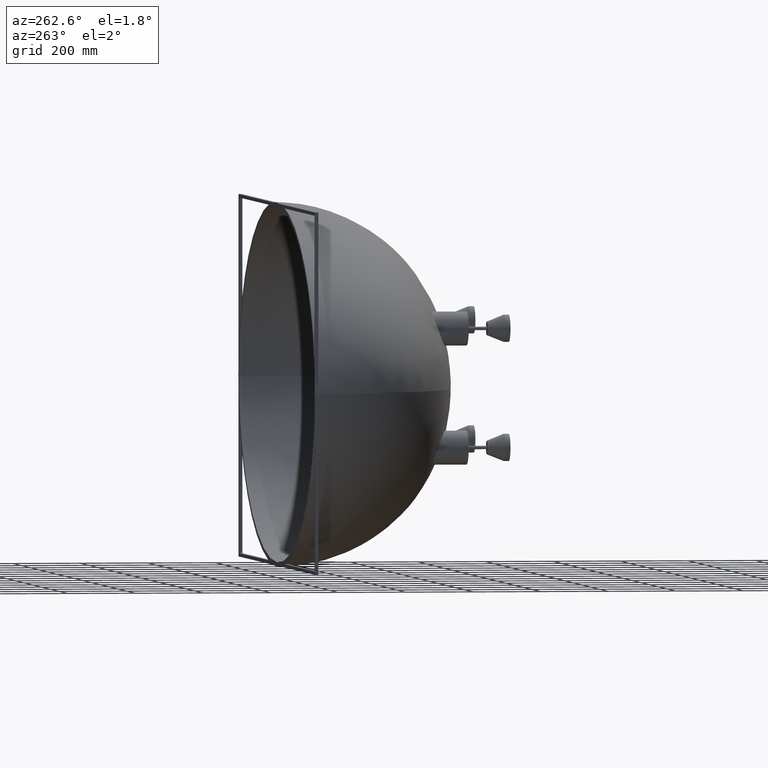
[diagram: clean part render]
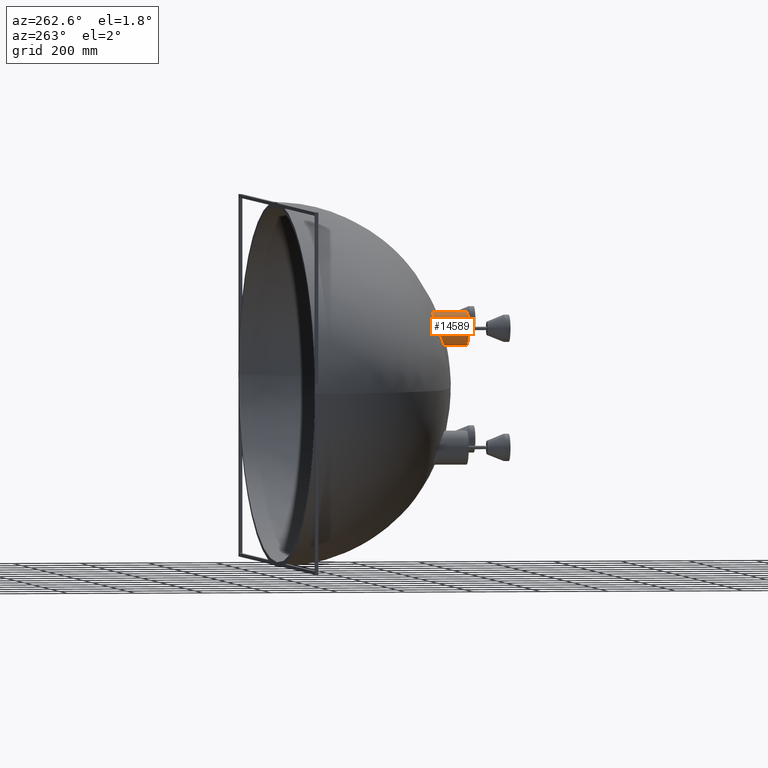
[diagram: same view with one face highlighted and labeled with its STEP entity id]
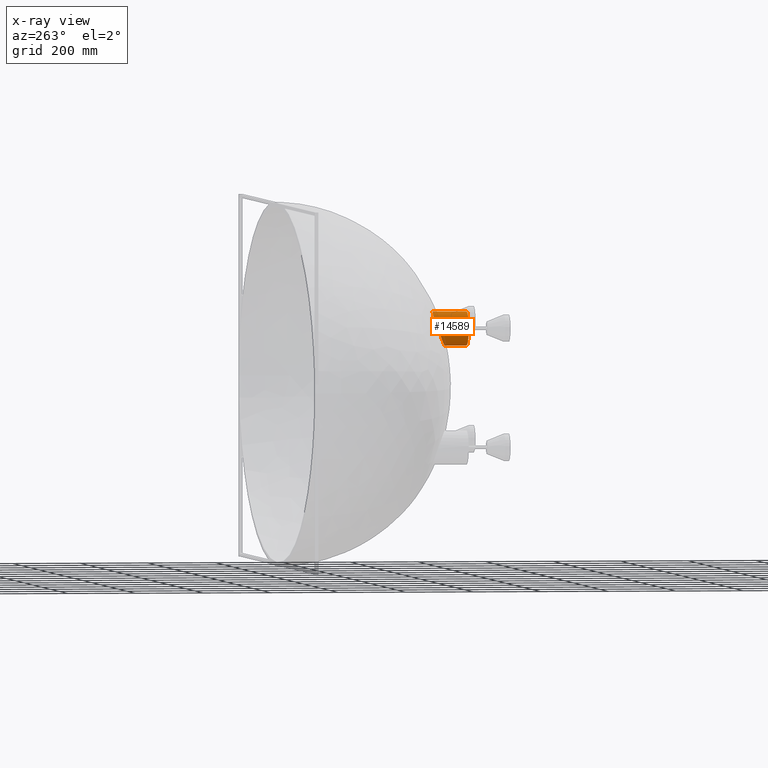
[diagram: x-ray of the same camera — body ghosted, the highlighted face saturated]
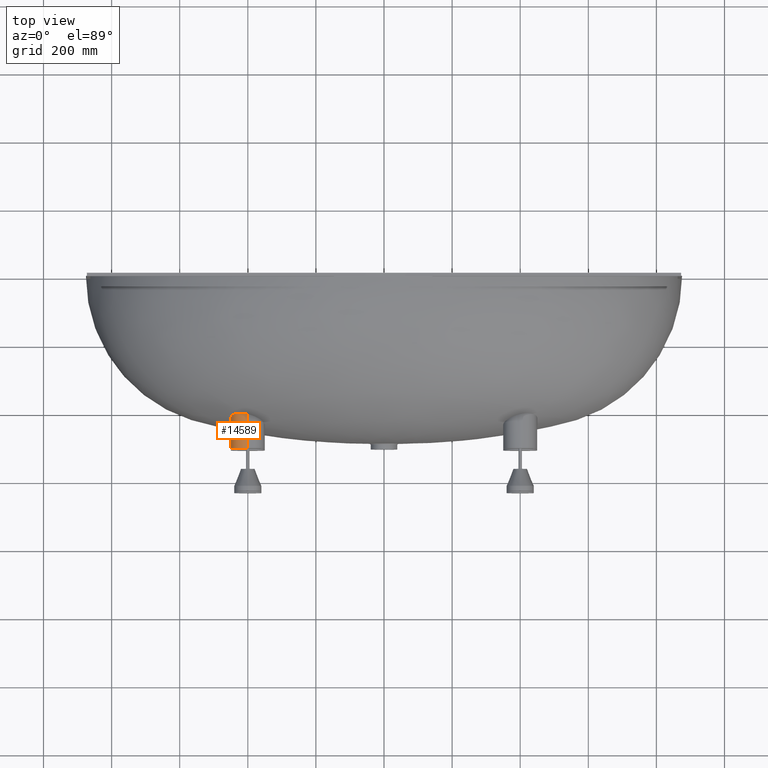
[diagram: same view with one face highlighted and labeled with its STEP entity id]
A machine part, auxiliary view. The second image highlights one B-rep face of the part: STEP entity #14589.
The next image is the same camera in x-ray: the body ghosted, the highlighted face saturated — about 0% of this face is hidden behind the body in this view.
A second angle (top view) of the same face is appended — the face is thin or edge-on in the first view.
In plain terms, the highlighted cylindrical surface (edge-blend (fillet) strip) has radius 50 mm, axis along (-0, -1, -0).
Its self-contained STEP definition (entity closure, byte-faithful):
#220 = CARTESIAN_POINT ( 'NONE',  ( -449.9116648370085200, -421.0381201785781400, 170.6494432975589200 ) ) ;
#264 = CARTESIAN_POINT ( 'NONE',  ( -414.0450456471586400, -407.6714688000552700, 222.9943056603304700 ) ) ;
#305 = CARTESIAN_POINT ( 'NONE',  ( -421.1647132385157300, -407.2619808071808100, 220.3311238034123400 ) ) ;
#373 = CARTESIAN_POINT ( 'NONE',  ( -422.6882404841763300, -407.2511992245716800, 219.5886551480459200 ) ) ;
#545 = CARTESIAN_POINT ( 'NONE',  ( -449.7327639298046600, -417.5366901305426900, 180.2251875773610800 ) ) ;
#620 = CARTESIAN_POINT ( 'NONE',  ( -400.0000000000000000, -445.3990864814148800, 124.9999999999999000 ) ) ;
#885 = CARTESIAN_POINT ( 'NONE',  ( -431.3235329533912900, -407.7369028091264900, 214.1202192636429800 ) ) ;
#1150 = CARTESIAN_POINT ( 'NONE',  ( -399.9999999999999400, -510.0000000000000000, 225.0000000000000600 ) ) ;
#1883 = CARTESIAN_POINT ( 'NONE',  ( -438.9835947540050300, -409.4006746826319200, 206.3205541717884700 ) ) ;
#2279 = EDGE_CURVE ( 'NONE', #14464, #12348, #14234, .T. ) ;
#2462 = CARTESIAN_POINT ( 'NONE',  ( -399.9999999999999400, 500000.0000000000600, 225.0000000000000600 ) ) ;
#2890 = CARTESIAN_POINT ( 'NONE',  ( -416.4701076750823200, -407.4636669845223200, 222.2398379057674700 ) ) ;
#3048 = CARTESIAN_POINT ( 'NONE',  ( -416.3164395272490900, -441.4707758312712300, 127.7086192455929000 ) ) ;
#3182 = CARTESIAN_POINT ( 'NONE',  ( -430.5275802337261000, -436.4741714355846500, 135.3929108751777900 ) ) ;
#3218 = CARTESIAN_POINT ( 'NONE',  ( -425.1878717946022400, -438.6091470739149300, 131.6852636224371100 ) ) ;
#3246 = B_SPLINE_CURVE_WITH_KNOTS ( 'NONE', 3,
 ( #17185, #6456, #19880, #5340, #17418, #5898, #264, #2890, #17348, #305, #373, #18927, #16192, #8152, #9160, #885, #21544, #6183, #20570, #8176, #1883, #8002, #11040, #19466, #10685, #20540, #14777, #4703, #11142, #6255, #20807, #16519, #15546, #545, #21086, #8368, #9654, #220, #6299, #10287, #3853, #20909, #11191, #15947, #19028, #16019, #8494, #11121, #11606, #17132, #6157, #6939, #9783, #5036, #10590, #7010, #3182, #11279, #4424, #3218, #14078, #11952, #3048, #6841, #15425, #4822, #18004, #19955, #5225, #19117, #20708, #20074 ),
 .UNSPECIFIED., .F., .F.,
 ( 4, 2, 2, 2, 2, 2, 2, 2, 2, 2, 2, 2, 2, 2, 2, 2, 2, 2, 2, 2, 2, 2, 2, 2, 2, 2, 2, 2, 2, 2, 2, 2, 2, 2, 2, 4 ),
 ( 0.1633217522038277500, 0.1734700106532636700, 0.1760070752656227900, 0.1785441398779819300, 0.1836182691027001300, 0.1886923983274183000, 0.1912294629397774400, 0.1937665275521365500, 0.2039147860015732600, 0.2064518506139323100, 0.2089889152262913700, 0.2140630444510094000, 0.2191371736757274400, 0.2216742382880865200, 0.2242113029004455800, 0.2343595613498817800, 0.2368966259622408700, 0.2394336905745999600, 0.2445078197993180700, 0.2546560782487543600, 0.2571931428611133900, 0.2597302074734724200, 0.2648043366981903700, 0.2749525951476262700, 0.2774896597599851900, 0.2800267243723441600, 0.2851008535970622200, 0.2901749828217802300, 0.2927120474341392600, 0.2952491120464981700, 0.3053973704959337400, 0.3104714997206515800, 0.3130085643330104400, 0.3155456289453693100, 0.3206197581700869200, 0.3256938873948046500 ),
 .UNSPECIFIED. ) ;
#3325 = VECTOR ( 'NONE', #17889, 1000.000000000000000 ) ;
#3330 = EDGE_CURVE ( 'NONE', #8118, #14464, #3246, .T. ) ;
#3518 = CARTESIAN_POINT ( 'NONE',  ( -399.9999999999999400, -510.0000000000000000, 124.9999999999999100 ) ) ;
#3573 = CARTESIAN_POINT ( 'NONE',  ( -399.9999999999999400, 500000.0000000000600, 124.9999999999999100 ) ) ;
#3853 = CARTESIAN_POINT ( 'NONE',  ( -448.5030361240246700, -424.0792809799227700, 162.8306995229813200 ) ) ;
#3876 = EDGE_CURVE ( 'NONE', #12348, #20702, #21361, .T. ) ;
#4424 = CARTESIAN_POINT ( 'NONE',  ( -428.5649013102395200, -437.2832963273377800, 133.9547978723611800 ) ) ;
#4703 = CARTESIAN_POINT ( 'NONE',  ( -446.1409410923747000, -412.8210244510600000, 194.2793703513798700 ) ) ;
#4822 = CARTESIAN_POINT ( 'NONE',  ( -411.5579640024334900, -442.7775107626143300, 126.3471242360050300 ) ) ;
#4863 = CYLINDRICAL_SURFACE ( 'NONE', #16654, 50.00000000000007100 ) ;
#5036 = CARTESIAN_POINT ( 'NONE',  ( -434.2038675179054500, -434.8240790441101900, 138.4947849888267500 ) ) ;
#5225 = CARTESIAN_POINT ( 'NONE',  ( -406.6659753156889700, -443.9864340125792500, 125.4184171961225900 ) ) ;
#5340 = CARTESIAN_POINT ( 'NONE',  ( -410.7474038529174400, -408.0358600024744600, 223.8386112229854300 ) ) ;
#5520 = DIRECTION ( 'NONE',  ( 0.0000000000000000000, 0.0000000000000000000, 1.000000000000000000 ) ) ;
#5898 = CARTESIAN_POINT ( 'NONE',  ( -413.2288848962468300, -407.7515225948305900, 223.2257219178698100 ) ) ;
#6157 = CARTESIAN_POINT ( 'NONE',  ( -439.0499432522741500, -432.2479692364682900, 143.7632241101689200 ) ) ;
#6183 = CARTESIAN_POINT ( 'NONE',  ( -436.7839812164919500, -408.7950814625605700, 208.8769634863120400 ) ) ;
#6255 = CARTESIAN_POINT ( 'NONE',  ( -447.9010494171914200, -414.2751277481643200, 189.7024173547136500 ) ) ;
#6299 = CARTESIAN_POINT ( 'NONE',  ( -449.5374321411407500, -422.2394221990283000, 167.5030846312295700 ) ) ;
#6456 = CARTESIAN_POINT ( 'NONE',  ( -403.2933541679270800, -409.1974872904681900, 225.0000000000001100 ) ) ;
#6841 = CARTESIAN_POINT ( 'NONE',  ( -413.9609276394496600, -442.1329802157131900, 126.9815897538013600 ) ) ;
#6939 = CARTESIAN_POINT ( 'NONE',  ( -437.5280109628454300, -433.1217938883922300, 141.9215275872362300 ) ) ;
#7010 = CARTESIAN_POINT ( 'NONE',  ( -431.1617326563473400, -436.2021347850314300, 135.8900127521376600 ) ) ;
#7139 = ORIENTED_EDGE ( 'NONE', *, *, #2279, .T. ) ;
#7210 = EDGE_CURVE ( 'NONE', #8118, #20702, #17652, .T. ) ;
#7480 = DIRECTION ( 'NONE',  ( 0.0000000000000000000, 1.000000000000000000, 0.0000000000000000000 ) ) ;
#7609 = ORIENTED_EDGE ( 'NONE', *, *, #3876, .T. ) ;
#8002 = CARTESIAN_POINT ( 'NONE',  ( -440.5203007236330600, -409.9006682352536500, 204.3410348071790600 ) ) ;
#8118 = VERTEX_POINT ( 'NONE', #18168 ) ;
#8152 = CARTESIAN_POINT ( 'NONE',  ( -427.1213218740262500, -407.4003646039184300, 217.0139140784354800 ) ) ;
#8176 = CARTESIAN_POINT ( 'NONE',  ( -438.4525813616072000, -409.2413729180032100, 206.9704733515444000 ) ) ;
#8178 = VECTOR ( 'NONE', #19803, 1000.000000000000000 ) ;
#8368 = CARTESIAN_POINT ( 'NONE',  ( -449.9853994921292000, -418.6885216385381300, 177.0121404941699600 ) ) ;
#8494 = CARTESIAN_POINT ( 'NONE',  ( -443.2133540742733500, -429.5604109976992500, 149.6445902846533600 ) ) ;
#9160 = CARTESIAN_POINT ( 'NONE',  ( -427.8341467510288700, -407.4481185773237300, 216.5449452898548900 ) ) ;
#9654 = CARTESIAN_POINT ( 'NONE',  ( -450.0235213911227600, -419.2714510457225900, 175.4155902280522500 ) ) ;
#9783 = CARTESIAN_POINT ( 'NONE',  ( -436.4572338957007100, -433.6949431202785400, 140.7449949223680500 ) ) ;
#10287 = CARTESIAN_POINT ( 'NONE',  ( -448.6917632398169600, -423.7707534954147400, 163.6093349493259600 ) ) ;
#10590 = CARTESIAN_POINT ( 'NONE',  ( -433.0212832550367900, -435.3800639425940100, 137.4211017872385700 ) ) ;
#10593 = DIRECTION ( 'NONE',  ( 0.0000000000000000000, 0.0000000000000000000, -1.000000000000000000 ) ) ;
#10685 = CARTESIAN_POINT ( 'NONE',  ( -444.0299394401082500, -411.4601536385241000, 198.7503035493477300 ) ) ;
#11040 = CARTESIAN_POINT ( 'NONE',  ( -441.4698085058901700, -410.2633844694278200, 202.9817502859922900 ) ) ;
#11121 = CARTESIAN_POINT ( 'NONE',  ( -440.9667969382294400, -431.0630386718210600, 146.3230977634746900 ) ) ;
#11142 = CARTESIAN_POINT ( 'NONE',  ( -446.4509232397897400, -413.0597598169846400, 193.5196842813242300 ) ) ;
#11191 = CARTESIAN_POINT ( 'NONE',  ( -447.8659789543356700, -425.0015921524487800, 160.5266812984263300 ) ) ;
#11279 = CARTESIAN_POINT ( 'NONE',  ( -429.2300673155504000, -437.0144020349033600, 134.4258970697245600 ) ) ;
#11606 = CARTESIAN_POINT ( 'NONE',  ( -440.5012326826519600, -431.3621366163173400, 145.6693197889020400 ) ) ;
#11952 = CARTESIAN_POINT ( 'NONE',  ( -417.8493032082937500, -441.0152247766217800, 128.2663248219290000 ) ) ;
#12116 = ORIENTED_EDGE ( 'NONE', *, *, #3330, .T. ) ;
#12348 = VERTEX_POINT ( 'NONE', #3518 ) ;
#13872 = DIRECTION ( 'NONE',  ( -0.0000000000000000000, -1.000000000000000000, -0.0000000000000000000 ) ) ;
#14078 = CARTESIAN_POINT ( 'NONE',  ( -422.3389860301349500, -439.6056401846399800, 130.1501863345053500 ) ) ;
#14234 = LINE ( 'NONE', #3573, #3325 ) ;
#14464 = VERTEX_POINT ( 'NONE', #620 ) ;
#14589 = ADVANCED_FACE ( 'NONE', ( #15292 ), #4863, .T. ) ;
#14777 = CARTESIAN_POINT ( 'NONE',  ( -445.4798078420951100, -412.3527309998718800, 195.7910472242682000 ) ) ;
#15292 = FACE_OUTER_BOUND ( 'NONE', #19129, .T. ) ;
#15425 = CARTESIAN_POINT ( 'NONE',  ( -413.1663706270512100, -442.3501874080856700, 126.7575338887054500 ) ) ;
#15545 = CARTESIAN_POINT ( 'NONE',  ( -399.9999999999999400, 500000.0000000000600, 175.0000000000000000 ) ) ;
#15546 = CARTESIAN_POINT ( 'NONE',  ( -449.5383796040553600, -416.9711100627557700, 181.8263708894840000 ) ) ;
#15947 = CARTESIAN_POINT ( 'NONE',  ( -447.1413720361279600, -425.9205121838706400, 158.2606265192414700 ) ) ;
#16019 = CARTESIAN_POINT ( 'NONE',  ( -444.7264336077869300, -428.3537926700327600, 152.4277452216826700 ) ) ;
#16020 = ORIENTED_EDGE ( 'NONE', *, *, #7210, .F. ) ;
#16192 = CARTESIAN_POINT ( 'NONE',  ( -425.6649491110086400, -407.3256664626541700, 217.9190571135251300 ) ) ;
#16519 = CARTESIAN_POINT ( 'NONE',  ( -449.4220004328242300, -416.6920869929983300, 182.6232054082490200 ) ) ;
#16654 = AXIS2_PLACEMENT_3D ( 'NONE', #15545, #13872, #10593 ) ;
#17132 = CARTESIAN_POINT ( 'NONE',  ( -439.5431928475777000, -431.9543413545583200, 144.3899599823965300 ) ) ;
#17185 = CARTESIAN_POINT ( 'NONE',  ( -399.9999999999989800, -409.9416649304914100, 225.0000000000000900 ) ) ;
#17348 = CARTESIAN_POINT ( 'NONE',  ( -418.0556483910116300, -407.3682138436841500, 221.6567190544841100 ) ) ;
#17418 = CARTESIAN_POINT ( 'NONE',  ( -411.5807244371520700, -407.9335931130824500, 223.6478208310361400 ) ) ;
#17428 = AXIS2_PLACEMENT_3D ( 'NONE', #20361, #7480, #5520 ) ;
#17652 = LINE ( 'NONE', #2462, #8178 ) ;
#17889 = DIRECTION ( 'NONE',  ( -0.0000000000000000000, -1.000000000000000000, -0.0000000000000000000 ) ) ;
#18004 = CARTESIAN_POINT ( 'NONE',  ( -410.7469111205501800, -442.9868606795079700, 126.1615671388306500 ) ) ;
#18168 = CARTESIAN_POINT ( 'NONE',  ( -399.9999999999989800, -409.9416649304914100, 225.0000000000000900 ) ) ;
#18927 = CARTESIAN_POINT ( 'NONE',  ( -424.9257924437100100, -407.2989908051873700, 218.3524045134509800 ) ) ;
#19028 = CARTESIAN_POINT ( 'NONE',  ( -446.5888772605414900, -426.5304864680838400, 156.7800479456047600 ) ) ;
#19117 = CARTESIAN_POINT ( 'NONE',  ( -403.3549158804590300, -444.7225119992911000, 125.0849409528330100 ) ) ;
#19129 = EDGE_LOOP ( 'NONE', ( #16020, #12116, #7139, #7609 ) ) ;
#19466 = CARTESIAN_POINT ( 'NONE',  ( -443.2246363143419800, -411.0431227889262100, 200.1863888256273800 ) ) ;
#19803 = DIRECTION ( 'NONE',  ( -0.0000000000000000000, -1.000000000000000000, -0.0000000000000000000 ) ) ;
#19880 = CARTESIAN_POINT ( 'NONE',  ( -406.5987886097284400, -408.5948399307991400, 224.6781859689521400 ) ) ;
#19955 = CARTESIAN_POINT ( 'NONE',  ( -408.3070376199762000, -443.5986751945603100, 125.6669723425368200 ) ) ;
#20074 = CARTESIAN_POINT ( 'NONE',  ( -400.0000000000000000, -445.3990864814148800, 124.9999999999999000 ) ) ;
#20361 = CARTESIAN_POINT ( 'NONE',  ( -399.9999999999999400, -510.0000000000000000, 175.0000000000000000 ) ) ;
#20540 = CARTESIAN_POINT ( 'NONE',  ( -445.1305627653316000, -412.1245614936577200, 196.5385799423013400 ) ) ;
#20570 = CARTESIAN_POINT ( 'NONE',  ( -437.3517820738594000, -408.9382708049154200, 208.2499106104022200 ) ) ;
#20702 = VERTEX_POINT ( 'NONE', #1150 ) ;
#20708 = CARTESIAN_POINT ( 'NONE',  ( -401.6832302411993400, -445.0711644167758400, 124.9999999999999400 ) ) ;
#20807 = CARTESIAN_POINT ( 'NONE',  ( -448.7448193234066600, -415.3159841829869400, 186.5888217168044300 ) ) ;
#20909 = CARTESIAN_POINT ( 'NONE',  ( -448.0901308824671800, -424.6946267061270500, 161.2895769920982300 ) ) ;
#21086 = CARTESIAN_POINT ( 'NONE',  ( -449.8108109654243700, -417.8238035445488700, 179.4193131712708000 ) ) ;
#21361 = CIRCLE ( 'NONE', #17428, 50.00000000000007100 ) ;
#21544 = CARTESIAN_POINT ( 'NONE',  ( -433.8781970026328200, -408.1265594381177900, 211.9273155653238500 ) ) ;